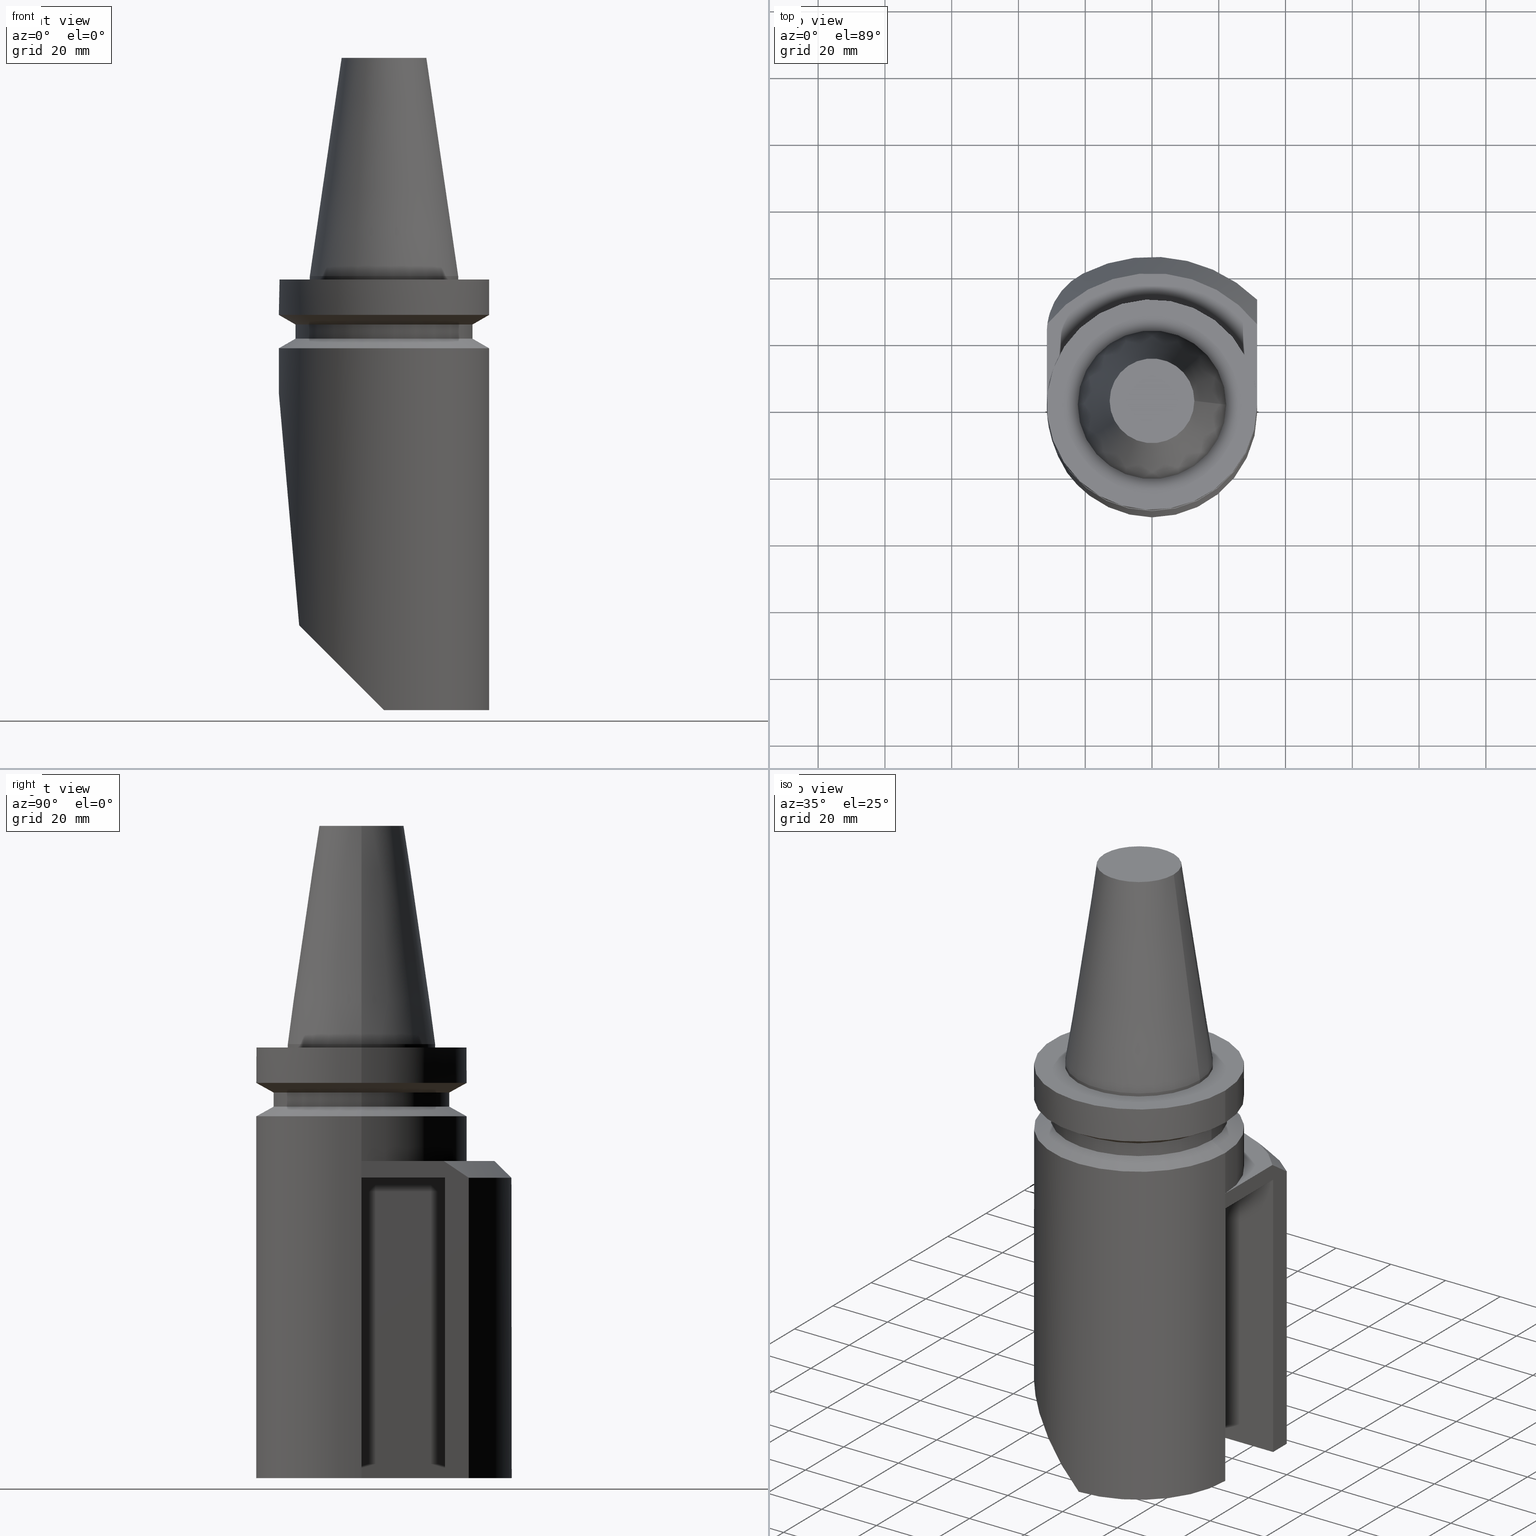
[diagram: canonical four-view strip — front | top / right | iso, engineering-drawing reading convention]
A machine part, canonical four-view strip (front | top / right | iso — engineering-drawing reading convention). The complete STEP part file that produces these views, byte-faithful:
ISO-10303-21;
HEADER;
FILE_DESCRIPTION((''),'1');
FILE_NAME('T:/21_DXF\X2\30C730FC30BF4F5C621057FA6E96\X0\/BBT40M-180-BH25R-130.stp','2017-05-02T05:33:56',(''),(''),'Spatial Interop R21 SP3','Kubotek KeyCreator 2011 V10.0.2 (22737)',' ');
FILE_SCHEMA(('automotive_design'));
ENDSEC;
DATA;
#1=MECHANICAL_DESIGN_GEOMETRIC_PRESENTATION_REPRESENTATION(' ',(#10,#11,#12,#13,#14,#15,#16,#17,#18,#19,#20,#21,#22,#23,#24,#25,#26,#27,#28,#29,#30,#31,#32,#33,#34,#35,#36,#37,#38,#39,#40,#41,#42,#43,#44,#45,#46,#47,#48,#49,#50,#51,#52,#53,#54,#55,#56,#57,#58,#59,#60,#61,#62,#63,#64,#65,#66,#67,#68,#69,#70,#71),#6);
#2=PRODUCT_DEFINITION_CONTEXT('',#72,'design');
#3=APPLICATION_PROTOCOL_DEFINITION('INTERNATIONAL STANDARD','automotive_design',1994,#72);
#4=PRODUCT_CATEGORY_RELATIONSHIP('NONE','NONE',#73,#74);
#5=SHAPE_DEFINITION_REPRESENTATION(#75,#76);
#6= (GEOMETRIC_REPRESENTATION_CONTEXT(3)GLOBAL_UNCERTAINTY_ASSIGNED_CONTEXT((#79))GLOBAL_UNIT_ASSIGNED_CONTEXT((#81,#82,#83))REPRESENTATION_CONTEXT('NONE','WORKSPACE'));
#10=STYLED_ITEM('',(#85),#86);
#11=STYLED_ITEM('',(#87,#88),#89);
#12=STYLED_ITEM('',(#90),#91);
#13=STYLED_ITEM('',(#92),#93);
#14=STYLED_ITEM('',(#94),#95);
#15=STYLED_ITEM('',(#96),#97);
#16=STYLED_ITEM('',(#98),#99);
#17=STYLED_ITEM('',(#100),#101);
#18=STYLED_ITEM('',(#102),#103);
#19=STYLED_ITEM('',(#104),#105);
#20=STYLED_ITEM('',(#106,#107),#108);
#21=STYLED_ITEM('',(#109,#110),#111);
#22=STYLED_ITEM('',(#112),#113);
#23=STYLED_ITEM('',(#114),#115);
#24=STYLED_ITEM('',(#116),#117);
#25=STYLED_ITEM('',(#118,#119),#120);
#26=STYLED_ITEM('',(#121),#122);
#27=STYLED_ITEM('',(#123),#124);
#28=STYLED_ITEM('',(#125,#126),#127);
#29=STYLED_ITEM('',(#128),#129);
#30=STYLED_ITEM('',(#130),#131);
#31=STYLED_ITEM('',(#132),#133);
#32=STYLED_ITEM('',(#134),#135);
#33=STYLED_ITEM('',(#136),#137);
#34=STYLED_ITEM('',(#138),#139);
#35=STYLED_ITEM('',(#140,#141),#142);
#36=STYLED_ITEM('',(#143),#144);
#37=STYLED_ITEM('',(#145,#146),#147);
#38=STYLED_ITEM('',(#148,#149),#150);
#39=STYLED_ITEM('',(#151,#152),#153);
#40=STYLED_ITEM('',(#154),#155);
#41=STYLED_ITEM('',(#156),#157);
#42=STYLED_ITEM('',(#158,#159),#160);
#43=STYLED_ITEM('',(#161,#162),#163);
#44=STYLED_ITEM('',(#164),#165);
#45=STYLED_ITEM('',(#166),#167);
#46=STYLED_ITEM('',(#168,#169),#170);
#47=STYLED_ITEM('',(#171,#172),#173);
#48=STYLED_ITEM('',(#174,#175),#176);
#49=STYLED_ITEM('',(#177),#178);
#50=STYLED_ITEM('',(#179),#180);
#51=STYLED_ITEM('',(#181),#182);
#52=STYLED_ITEM('',(#183),#184);
#53=STYLED_ITEM('',(#185),#186);
#54=STYLED_ITEM('',(#187,#188),#189);
#55=STYLED_ITEM('',(#190),#191);
#56=STYLED_ITEM('',(#192),#193);
#57=STYLED_ITEM('',(#194,#195),#196);
#58=STYLED_ITEM('',(#197),#198);
#59=STYLED_ITEM('',(#199,#200),#201);
#60=STYLED_ITEM('',(#202),#203);
#61=STYLED_ITEM('',(#204,#205),#206);
#62=STYLED_ITEM('',(#207,#208),#209);
#63=STYLED_ITEM('',(#210,#211),#212);
#64=STYLED_ITEM('',(#213),#214);
#65=STYLED_ITEM('',(#215,#216),#217);
#66=STYLED_ITEM('',(#218),#219);
#67=STYLED_ITEM('',(#220),#221);
#68=STYLED_ITEM('',(#222),#223);
#69=STYLED_ITEM('',(#224),#225);
#70=STYLED_ITEM('',(#226,#227),#228);
#71=STYLED_ITEM('',(#229),#230);
#72=APPLICATION_CONTEXT(' ');
#73=PRODUCT_CATEGORY('part','NONE');
#74=PRODUCT_RELATED_PRODUCT_CATEGORY('detail',' ',(#231));
#75=PRODUCT_DEFINITION_SHAPE('NONE','NONE',#232);
#76=ADVANCED_BREP_SHAPE_REPRESENTATION('240[2]',(#163,#233),#6);
#79=UNCERTAINTY_MEASURE_WITH_UNIT(LENGTH_MEASURE(1.0E-006),#81,'','');
#81= (CONVERSION_BASED_UNIT('MILLIMETRE',#236)LENGTH_UNIT()NAMED_UNIT(#239));
#82= (NAMED_UNIT(#241)PLANE_ANGLE_UNIT()SI_UNIT($,.RADIAN.));
#83= (NAMED_UNIT(#241)SOLID_ANGLE_UNIT()SI_UNIT($,.STERADIAN.));
#85=PRESENTATION_STYLE_ASSIGNMENT((#247));
#86=EDGE_CURVE('240[2]',#248,#249,#250,.T.);
#87=PRESENTATION_STYLE_ASSIGNMENT((#251));
#88=PRESENTATION_STYLE_ASSIGNMENT((#252));
#89=ADVANCED_FACE('240[2]',(#253),#254,.T.);
#90=PRESENTATION_STYLE_ASSIGNMENT((#255));
#91=EDGE_CURVE('240[2]',#256,#257,#258,.T.);
#92=PRESENTATION_STYLE_ASSIGNMENT((#259));
#93=EDGE_CURVE('240[2]',#260,#261,#262,.T.);
#94=PRESENTATION_STYLE_ASSIGNMENT((#263));
#95=EDGE_CURVE('240[2]',#264,#265,#266,.T.);
#96=PRESENTATION_STYLE_ASSIGNMENT((#267));
#97=EDGE_CURVE('240[2]',#268,#269,#270,.T.);
#98=PRESENTATION_STYLE_ASSIGNMENT((#271));
#99=EDGE_CURVE('240[2]',#272,#273,#274,.T.);
#100=PRESENTATION_STYLE_ASSIGNMENT((#275));
#101=EDGE_CURVE('240[2]',#276,#248,#277,.T.);
#102=PRESENTATION_STYLE_ASSIGNMENT((#278));
#103=EDGE_CURVE('240[2]',#279,#265,#280,.T.);
#104=PRESENTATION_STYLE_ASSIGNMENT((#281));
#105=EDGE_CURVE('240[2]',#282,#282,#283,.T.);
#106=PRESENTATION_STYLE_ASSIGNMENT((#284));
#107=PRESENTATION_STYLE_ASSIGNMENT((#285));
#108=ADVANCED_FACE('240[2]',(#286),#287,.T.);
#109=PRESENTATION_STYLE_ASSIGNMENT((#288));
#110=PRESENTATION_STYLE_ASSIGNMENT((#289));
#111=ADVANCED_FACE('240[2]',(#290),#291,.F.);
#112=PRESENTATION_STYLE_ASSIGNMENT((#292));
#113=EDGE_CURVE('240[2]',#293,#294,#295,.F.);
#114=PRESENTATION_STYLE_ASSIGNMENT((#296));
#115=EDGE_CURVE('240[2]',#297,#298,#299,.T.);
#116=PRESENTATION_STYLE_ASSIGNMENT((#300));
#117=EDGE_CURVE('240[2]',#256,#272,#301,.T.);
#118=PRESENTATION_STYLE_ASSIGNMENT((#302));
#119=PRESENTATION_STYLE_ASSIGNMENT((#303));
#120=ADVANCED_FACE('240[2]',(#304,#305),#306,.T.);
#121=PRESENTATION_STYLE_ASSIGNMENT((#307));
#122=EDGE_CURVE('240[2]',#308,#308,#309,.T.);
#123=PRESENTATION_STYLE_ASSIGNMENT((#310));
#124=EDGE_CURVE('240[2]',#269,#264,#311,.T.);
#125=PRESENTATION_STYLE_ASSIGNMENT((#312));
#126=PRESENTATION_STYLE_ASSIGNMENT((#313));
#127=ADVANCED_FACE('240[2]',(#314),#315,.F.);
#128=PRESENTATION_STYLE_ASSIGNMENT((#316));
#129=EDGE_CURVE('240[2]',#317,#294,#318,.F.);
#130=PRESENTATION_STYLE_ASSIGNMENT((#319));
#131=EDGE_CURVE('240[2]',#293,#276,#320,.T.);
#132=PRESENTATION_STYLE_ASSIGNMENT((#321));
#133=EDGE_CURVE('240[2]',#257,#322,#323,.T.);
#134=PRESENTATION_STYLE_ASSIGNMENT((#324));
#135=EDGE_CURVE('240[2]',#325,#325,#326,.T.);
#136=PRESENTATION_STYLE_ASSIGNMENT((#327));
#137=EDGE_CURVE('240[2]',#261,#268,#328,.T.);
#138=PRESENTATION_STYLE_ASSIGNMENT((#329));
#139=EDGE_CURVE('240[2]',#294,#298,#330,.F.);
#140=PRESENTATION_STYLE_ASSIGNMENT((#331));
#141=PRESENTATION_STYLE_ASSIGNMENT((#332));
#142=ADVANCED_FACE('240[2]',(#333),#334,.T.);
#143=PRESENTATION_STYLE_ASSIGNMENT((#335));
#144=EDGE_CURVE('240[2]',#273,#257,#336,.T.);
#145=PRESENTATION_STYLE_ASSIGNMENT((#337));
#146=PRESENTATION_STYLE_ASSIGNMENT((#338));
#147=ADVANCED_FACE('240[2]',(#339,#340),#341,.T.);
#148=PRESENTATION_STYLE_ASSIGNMENT((#342));
#149=PRESENTATION_STYLE_ASSIGNMENT((#343));
#150=ADVANCED_FACE('240[2]',(#344,#345),#346,.T.);
#151=PRESENTATION_STYLE_ASSIGNMENT((#347));
#152=PRESENTATION_STYLE_ASSIGNMENT((#348));
#153=ADVANCED_FACE('240[2]',(#349),#350,.F.);
#154=PRESENTATION_STYLE_ASSIGNMENT((#351));
#155=EDGE_CURVE('240[2]',#279,#352,#353,.T.);
#156=PRESENTATION_STYLE_ASSIGNMENT((#354));
#157=EDGE_CURVE('240[2]',#265,#260,#355,.T.);
#158=PRESENTATION_STYLE_ASSIGNMENT((#356));
#159=PRESENTATION_STYLE_ASSIGNMENT((#357));
#160=ADVANCED_FACE('240[2]',(#358,#359),#360,.T.);
#161=PRESENTATION_STYLE_ASSIGNMENT((#361));
#162=PRESENTATION_STYLE_ASSIGNMENT((#362));
#163=MANIFOLD_SOLID_BREP('240[2]',#363);
#164=PRESENTATION_STYLE_ASSIGNMENT((#364));
#165=EDGE_CURVE('240[2]',#276,#352,#365,.F.);
#166=PRESENTATION_STYLE_ASSIGNMENT((#366));
#167=EDGE_CURVE('240[2]',#269,#293,#367,.T.);
#168=PRESENTATION_STYLE_ASSIGNMENT((#368));
#169=PRESENTATION_STYLE_ASSIGNMENT((#369));
#170=ADVANCED_FACE('240[2]',(#370,#371),#372,.T.);
#171=PRESENTATION_STYLE_ASSIGNMENT((#373));
#172=PRESENTATION_STYLE_ASSIGNMENT((#374));
#173=ADVANCED_FACE('240[2]',(#375),#376,.F.);
#174=PRESENTATION_STYLE_ASSIGNMENT((#377));
#175=PRESENTATION_STYLE_ASSIGNMENT((#378));
#176=ADVANCED_FACE('240[2]',(#379,#380),#381,.T.);
#177=PRESENTATION_STYLE_ASSIGNMENT((#382));
#178=EDGE_CURVE('240[2]',#317,#256,#383,.T.);
#179=PRESENTATION_STYLE_ASSIGNMENT((#384));
#180=EDGE_CURVE('240[2]',#272,#268,#385,.T.);
#181=PRESENTATION_STYLE_ASSIGNMENT((#386));
#182=EDGE_CURVE('240[2]',#248,#298,#387,.T.);
#183=PRESENTATION_STYLE_ASSIGNMENT((#388));
#184=EDGE_CURVE('240[2]',#322,#317,#389,.T.);
#185=PRESENTATION_STYLE_ASSIGNMENT((#390));
#186=EDGE_CURVE('240[2]',#391,#391,#392,.T.);
#187=PRESENTATION_STYLE_ASSIGNMENT((#393));
#188=PRESENTATION_STYLE_ASSIGNMENT((#394));
#189=ADVANCED_FACE('240[2]',(#395),#396,.F.);
#190=PRESENTATION_STYLE_ASSIGNMENT((#397));
#191=EDGE_CURVE('240[2]',#398,#398,#399,.T.);
#192=PRESENTATION_STYLE_ASSIGNMENT((#400));
#193=EDGE_CURVE('240[2]',#401,#401,#402,.T.);
#194=PRESENTATION_STYLE_ASSIGNMENT((#403));
#195=PRESENTATION_STYLE_ASSIGNMENT((#404));
#196=ADVANCED_FACE('240[2]',(#405),#406,.T.);
#197=PRESENTATION_STYLE_ASSIGNMENT((#407));
#198=EDGE_CURVE('240[2]',#408,#408,#409,.T.);
#199=PRESENTATION_STYLE_ASSIGNMENT((#410));
#200=PRESENTATION_STYLE_ASSIGNMENT((#411));
#201=ADVANCED_FACE('240[2]',(#412,#413),#414,.T.);
#202=PRESENTATION_STYLE_ASSIGNMENT((#415));
#203=EDGE_CURVE('240[2]',#352,#264,#416,.F.);
#204=PRESENTATION_STYLE_ASSIGNMENT((#417));
#205=PRESENTATION_STYLE_ASSIGNMENT((#418));
#206=ADVANCED_FACE('240[2]',(#419),#420,.F.);
#207=PRESENTATION_STYLE_ASSIGNMENT((#421));
#208=PRESENTATION_STYLE_ASSIGNMENT((#422));
#209=ADVANCED_FACE('240[2]',(#423),#424,.T.);
#210=PRESENTATION_STYLE_ASSIGNMENT((#425));
#211=PRESENTATION_STYLE_ASSIGNMENT((#426));
#212=ADVANCED_FACE('240[2]',(#427,#428),#429,.T.);
#213=PRESENTATION_STYLE_ASSIGNMENT((#430));
#214=EDGE_CURVE('240[2]',#249,#297,#431,.T.);
#215=PRESENTATION_STYLE_ASSIGNMENT((#432));
#216=PRESENTATION_STYLE_ASSIGNMENT((#433));
#217=ADVANCED_FACE('240[2]',(#434),#435,.T.);
#218=PRESENTATION_STYLE_ASSIGNMENT((#436));
#219=EDGE_CURVE('240[2]',#260,#297,#437,.T.);
#220=PRESENTATION_STYLE_ASSIGNMENT((#438));
#221=EDGE_CURVE('240[2]',#261,#273,#439,.T.);
#222=PRESENTATION_STYLE_ASSIGNMENT((#440));
#223=EDGE_CURVE('240[2]',#261,#322,#441,.T.);
#224=PRESENTATION_STYLE_ASSIGNMENT((#442));
#225=EDGE_CURVE('240[2]',#249,#279,#443,.T.);
#226=PRESENTATION_STYLE_ASSIGNMENT((#444));
#227=PRESENTATION_STYLE_ASSIGNMENT((#445));
#228=ADVANCED_FACE('240[2]',(#446),#447,.T.);
#229=PRESENTATION_STYLE_ASSIGNMENT((#448));
#230=EDGE_CURVE('240[2]',#449,#449,#450,.T.);
#231=PRODUCT('240[2]','240[2]','PART-240[2]-DESC',(#451));
#232=PRODUCT_DEFINITION('NONE','NONE',#452,#2);
#233=AXIS2_PLACEMENT_3D('',#453,#454,#455);
#236=LENGTH_MEASURE_WITH_UNIT(LENGTH_MEASURE(1.0),#456);
#239=DIMENSIONAL_EXPONENTS(1.0,0.0,0.0,0.0,0.0,0.0,0.0);
#241=DIMENSIONAL_EXPONENTS(0.0,0.0,0.0,0.0,0.0,0.0,0.0);
#247=CURVE_STYLE('',#457,POSITIVE_LENGTH_MEASURE(1000.0),#458);
#248=VERTEX_POINT('',#459);
#249=VERTEX_POINT('',#460);
#250=B_SPLINE_CURVE_WITH_KNOTS('',3,(#461,#462,#463,#464,#465,#466,#467,#468,#469,#470,#471,#472),.UNSPECIFIED.,.F.,.F.,(4,2,2,2,2,4),(3.6448240647727,4.06943192137555,4.49403977797839,4.91864763458123,5.34325549118408,5.58489350391862),.UNSPECIFIED.);
#251=SURFACE_STYLE_USAGE(.BOTH.,#473);
#252=CURVE_STYLE('',#474,POSITIVE_LENGTH_MEASURE(1000.0),#475);
#253=FACE_OUTER_BOUND('',#476,.T.);
#254=CONICAL_SURFACE('',#477,42.5,0.785398163397448);
#255=CURVE_STYLE('',#478,POSITIVE_LENGTH_MEASURE(1000.0),#479);
#256=VERTEX_POINT('',#480);
#257=VERTEX_POINT('',#481);
#258=LINE('',#482,#483);
#259=CURVE_STYLE('',#484,POSITIVE_LENGTH_MEASURE(1000.0),#485);
#260=VERTEX_POINT('',#486);
#261=VERTEX_POINT('',#487);
#262=LINE('',#488,#489);
#263=CURVE_STYLE('',#490,POSITIVE_LENGTH_MEASURE(1000.0),#491);
#264=VERTEX_POINT('',#492);
#265=VERTEX_POINT('',#493);
#266=ELLIPSE('',#494,361.421967366517,31.5);
#267=CURVE_STYLE('',#495,POSITIVE_LENGTH_MEASURE(1000.0),#496);
#268=VERTEX_POINT('',#497);
#269=VERTEX_POINT('',#498);
#270=CIRCLE('',#499,31.5);
#271=CURVE_STYLE('',#500,POSITIVE_LENGTH_MEASURE(1000.0),#501);
#272=VERTEX_POINT('',#502);
#273=VERTEX_POINT('',#503);
#274=LINE('',#504,#505);
#275=CURVE_STYLE('',#506,POSITIVE_LENGTH_MEASURE(1000.0),#507);
#276=VERTEX_POINT('',#508);
#277=LINE('',#509,#510);
#278=CURVE_STYLE('',#511,POSITIVE_LENGTH_MEASURE(1000.0),#512);
#279=VERTEX_POINT('',#513);
#280=LINE('',#514,#515);
#281=CURVE_STYLE('',#516,POSITIVE_LENGTH_MEASURE(1000.0),#517);
#282=VERTEX_POINT('',#518);
#283=CIRCLE('',#519,31.5);
#284=SURFACE_STYLE_USAGE(.BOTH.,#520);
#285=CURVE_STYLE('',#521,POSITIVE_LENGTH_MEASURE(1000.0),#522);
#286=FACE_OUTER_BOUND('',#523,.T.);
#287=PLANE('',#524);
#288=SURFACE_STYLE_USAGE(.BOTH.,#525);
#289=CURVE_STYLE('',#526,POSITIVE_LENGTH_MEASURE(1000.0),#527);
#290=FACE_OUTER_BOUND('',#528,.T.);
#291=PLANE('',#529);
#292=CURVE_STYLE('',#530,POSITIVE_LENGTH_MEASURE(1000.0),#531);
#293=VERTEX_POINT('',#532);
#294=VERTEX_POINT('',#533);
#295=CIRCLE('',#534,45.0);
#296=CURVE_STYLE('',#535,POSITIVE_LENGTH_MEASURE(1000.0),#536);
#297=VERTEX_POINT('',#537);
#298=VERTEX_POINT('',#538);
#299=B_SPLINE_CURVE_WITH_KNOTS('',3,(#539,#540,#541,#542,#543,#544,#545),.UNSPECIFIED.,.F.,.F.,(4,3,4),(0.0,0.369362908378819,0.917538816278321),.UNSPECIFIED.);
#300=CURVE_STYLE('',#546,POSITIVE_LENGTH_MEASURE(1000.0),#547);
#301=LINE('',#548,#549);
#302=SURFACE_STYLE_USAGE(.BOTH.,#550);
#303=CURVE_STYLE('',#551,POSITIVE_LENGTH_MEASURE(1000.0),#552);
#304=FACE_BOUND('',#553,.T.);
#305=FACE_BOUND('',#554,.T.);
#306=CYLINDRICAL_SURFACE('',#555,31.5);
#307=CURVE_STYLE('',#556,POSITIVE_LENGTH_MEASURE(1000.0),#557);
#308=VERTEX_POINT('',#558);
#309=CIRCLE('',#559,31.5);
#310=CURVE_STYLE('',#560,POSITIVE_LENGTH_MEASURE(1000.0),#561);
#311=ELLIPSE('',#562,44.5477272147525,31.5);
#312=SURFACE_STYLE_USAGE(.BOTH.,#563);
#313=CURVE_STYLE('',#564,POSITIVE_LENGTH_MEASURE(1000.0),#565);
#314=FACE_OUTER_BOUND('',#566,.T.);
#315=PLANE('',#567);
#316=CURVE_STYLE('',#568,POSITIVE_LENGTH_MEASURE(1000.0),#569);
#317=VERTEX_POINT('',#570);
#318=LINE('',#571,#572);
#319=CURVE_STYLE('',#573,POSITIVE_LENGTH_MEASURE(1000.0),#574);
#320=ELLIPSE('',#575,63.6396103067893,45.0);
#321=CURVE_STYLE('',#576,POSITIVE_LENGTH_MEASURE(1000.0),#577);
#322=VERTEX_POINT('',#578);
#323=LINE('',#579,#580);
#324=CURVE_STYLE('',#581,POSITIVE_LENGTH_MEASURE(1000.0),#582);
#325=VERTEX_POINT('',#583);
#326=CIRCLE('',#584,22.225);
#327=CURVE_STYLE('',#585,POSITIVE_LENGTH_MEASURE(1000.0),#586);
#328=LINE('',#587,#588);
#329=CURVE_STYLE('',#589,POSITIVE_LENGTH_MEASURE(1000.0),#590);
#330=LINE('',#591,#592);
#331=SURFACE_STYLE_USAGE(.BOTH.,#593);
#332=CURVE_STYLE('',#594,POSITIVE_LENGTH_MEASURE(1000.0),#595);
#333=FACE_OUTER_BOUND('',#596,.T.);
#334=CYLINDRICAL_SURFACE('',#597,45.0);
#335=CURVE_STYLE('',#598,POSITIVE_LENGTH_MEASURE(1000.0),#599);
#336=LINE('',#600,#601);
#337=SURFACE_STYLE_USAGE(.BOTH.,#602);
#338=CURVE_STYLE('',#603,POSITIVE_LENGTH_MEASURE(1000.0),#604);
#339=FACE_BOUND('',#605,.T.);
#340=FACE_BOUND('',#606,.T.);
#341=CYLINDRICAL_SURFACE('',#607,31.5);
#342=SURFACE_STYLE_USAGE(.BOTH.,#608);
#343=CURVE_STYLE('',#609,POSITIVE_LENGTH_MEASURE(1000.0),#610);
#344=FACE_BOUND('',#611,.T.);
#345=FACE_BOUND('',#612,.T.);
#346=CYLINDRICAL_SURFACE('',#613,26.5);
#347=SURFACE_STYLE_USAGE(.BOTH.,#614);
#348=CURVE_STYLE('',#615,POSITIVE_LENGTH_MEASURE(1000.0),#616);
#349=FACE_OUTER_BOUND('',#617,.T.);
#350=PLANE('',#618);
#351=CURVE_STYLE('',#619,POSITIVE_LENGTH_MEASURE(1000.0),#620);
#352=VERTEX_POINT('',#621);
#353=ELLIPSE('',#622,229.474264994614,20.0);
#354=CURVE_STYLE('',#623,POSITIVE_LENGTH_MEASURE(1000.0),#624);
#355=CIRCLE('',#625,31.5);
#356=SURFACE_STYLE_USAGE(.BOTH.,#626);
#357=CURVE_STYLE('',#627,POSITIVE_LENGTH_MEASURE(1000.0),#628);
#358=FACE_BOUND('',#629,.T.);
#359=FACE_BOUND('',#630,.T.);
#360=CYLINDRICAL_SURFACE('',#631,22.225);
#361=SURFACE_STYLE_USAGE(.BOTH.,#632);
#362=CURVE_STYLE('',#633,POSITIVE_LENGTH_MEASURE(1000.0),#634);
#363=CLOSED_SHELL('',(#173,#206,#127,#108,#189,#217,#209,#142,#147,#153,#111,#89,#228,#196,#176,#160,#170,#212,#150,#201,#120));
#364=CURVE_STYLE('',#635,POSITIVE_LENGTH_MEASURE(1000.0),#636);
#365=ELLIPSE('',#637,28.2842712474619,20.0);
#366=CURVE_STYLE('',#638,POSITIVE_LENGTH_MEASURE(1000.0),#639);
#367=LINE('',#640,#641);
#368=SURFACE_STYLE_USAGE(.BOTH.,#642);
#369=CURVE_STYLE('',#643,POSITIVE_LENGTH_MEASURE(1000.0),#644);
#370=FACE_OUTER_BOUND('',#645,.T.);
#371=FACE_BOUND('',#646,.T.);
#372=PLANE('',#647);
#373=SURFACE_STYLE_USAGE(.BOTH.,#648);
#374=CURVE_STYLE('',#649,POSITIVE_LENGTH_MEASURE(1000.0),#650);
#375=FACE_OUTER_BOUND('',#651,.T.);
#376=PLANE('',#652);
#377=SURFACE_STYLE_USAGE(.BOTH.,#653);
#378=CURVE_STYLE('',#654,POSITIVE_LENGTH_MEASURE(1000.0),#655);
#379=FACE_BOUND('',#656,.T.);
#380=FACE_BOUND('',#657,.T.);
#381=CONICAL_SURFACE('',#658,17.4562500022463,0.144812498171676);
#382=CURVE_STYLE('',#659,POSITIVE_LENGTH_MEASURE(1000.0),#660);
#383=LINE('',#661,#662);
#384=CURVE_STYLE('',#663,POSITIVE_LENGTH_MEASURE(1000.0),#664);
#385=LINE('',#665,#666);
#386=CURVE_STYLE('',#667,POSITIVE_LENGTH_MEASURE(1000.0),#668);
#387=CIRCLE('',#669,45.0);
#388=CURVE_STYLE('',#670,POSITIVE_LENGTH_MEASURE(1000.0),#671);
#389=LINE('',#672,#673);
#390=CURVE_STYLE('',#674,POSITIVE_LENGTH_MEASURE(1000.0),#675);
#391=VERTEX_POINT('',#676);
#392=CIRCLE('',#677,12.6875000044926);
#393=SURFACE_STYLE_USAGE(.BOTH.,#678);
#394=CURVE_STYLE('',#679,POSITIVE_LENGTH_MEASURE(1000.0),#680);
#395=FACE_OUTER_BOUND('',#681,.T.);
#396=PLANE('',#682);
#397=CURVE_STYLE('',#683,POSITIVE_LENGTH_MEASURE(1000.0),#684);
#398=VERTEX_POINT('',#685);
#399=CIRCLE('',#686,22.225);
#400=CURVE_STYLE('',#687,POSITIVE_LENGTH_MEASURE(1000.0),#688);
#401=VERTEX_POINT('',#689);
#402=CIRCLE('',#690,26.5);
#403=SURFACE_STYLE_USAGE(.BOTH.,#691);
#404=CURVE_STYLE('',#692,POSITIVE_LENGTH_MEASURE(1000.0),#693);
#405=FACE_OUTER_BOUND('',#694,.T.);
#406=PLANE('',#695);
#407=CURVE_STYLE('',#696,POSITIVE_LENGTH_MEASURE(1000.0),#697);
#408=VERTEX_POINT('',#698);
#409=CIRCLE('',#699,26.5);
#410=SURFACE_STYLE_USAGE(.BOTH.,#700);
#411=CURVE_STYLE('',#701,POSITIVE_LENGTH_MEASURE(1000.0),#702);
#412=FACE_BOUND('',#703,.T.);
#413=FACE_BOUND('',#704,.T.);
#414=CONICAL_SURFACE('',#705,29.0,1.04719755058882);
#415=CURVE_STYLE('',#706,POSITIVE_LENGTH_MEASURE(1000.0),#707);
#416=LINE('',#708,#709);
#417=SURFACE_STYLE_USAGE(.BOTH.,#710);
#418=CURVE_STYLE('',#711,POSITIVE_LENGTH_MEASURE(1000.0),#712);
#419=FACE_OUTER_BOUND('',#713,.T.);
#420=PLANE('',#714);
#421=SURFACE_STYLE_USAGE(.BOTH.,#715);
#422=CURVE_STYLE('',#716,POSITIVE_LENGTH_MEASURE(1000.0),#717);
#423=FACE_OUTER_BOUND('',#718,.T.);
#424=PLANE('',#719);
#425=SURFACE_STYLE_USAGE(.BOTH.,#720);
#426=CURVE_STYLE('',#721,POSITIVE_LENGTH_MEASURE(1000.0),#722);
#427=FACE_BOUND('',#723,.T.);
#428=FACE_BOUND('',#724,.T.);
#429=CONICAL_SURFACE('',#725,29.0,1.04719755058882);
#430=CURVE_STYLE('',#726,POSITIVE_LENGTH_MEASURE(1000.0),#727);
#431=CIRCLE('',#728,40.0);
#432=SURFACE_STYLE_USAGE(.BOTH.,#729);
#433=CURVE_STYLE('',#730,POSITIVE_LENGTH_MEASURE(1000.0),#731);
#434=FACE_OUTER_BOUND('',#732,.T.);
#435=CYLINDRICAL_SURFACE('',#733,20.0);
#436=CURVE_STYLE('',#734,POSITIVE_LENGTH_MEASURE(1000.0),#735);
#437=LINE('',#736,#737);
#438=CURVE_STYLE('',#738,POSITIVE_LENGTH_MEASURE(1000.0),#739);
#439=LINE('',#740,#741);
#440=CURVE_STYLE('',#742,POSITIVE_LENGTH_MEASURE(1000.0),#743);
#441=LINE('',#744,#745);
#442=CURVE_STYLE('',#746,POSITIVE_LENGTH_MEASURE(1000.0),#747);
#443=CIRCLE('',#748,20.0);
#444=SURFACE_STYLE_USAGE(.BOTH.,#749);
#445=CURVE_STYLE('',#750,POSITIVE_LENGTH_MEASURE(1000.0),#751);
#446=FACE_OUTER_BOUND('',#752,.T.);
#447=PLANE('',#753);
#448=CURVE_STYLE('',#754,POSITIVE_LENGTH_MEASURE(1000.0),#755);
#449=VERTEX_POINT('',#756);
#450=CIRCLE('',#757,31.5);
#451=PRODUCT_CONTEXT('',#72,'mechanical');
#452=PRODUCT_DEFINITION_FORMATION_WITH_SPECIFIED_SOURCE(' ','NONE',#231,.NOT_KNOWN.);
#453=CARTESIAN_POINT('',(0.0,0.0,0.0));
#454=DIRECTION('',(0.0,0.0,1.0));
#455=DIRECTION('',(1.0,0.0,0.0));
#456= (NAMED_UNIT(#239)LENGTH_UNIT()SI_UNIT(.MILLI.,.METRE.));
#457=DRAUGHTING_PRE_DEFINED_CURVE_FONT('continuous');
#458=COLOUR_RGB('',0.0,1.0,1.0);
#459=CARTESIAN_POINT('',(-20.7000000003111,39.9563511842665,-39.9999999997035));
#460=CARTESIAN_POINT('',(-31.3190777410008,24.8820290461439,-35.0));
#461=CARTESIAN_POINT('',(-20.7000000003111,39.9563511842665,-39.9999999997035));
#462=CARTESIAN_POINT('',(-21.9567244917306,39.3052858041324,-39.9999999997083));
#463=CARTESIAN_POINT('',(-23.1716294908664,38.5038773242289,-39.915406152038));
#464=CARTESIAN_POINT('',(-25.4050109414492,36.6465065579947,-39.5679453349064));
#465=CARTESIAN_POINT('',(-26.4235938720837,35.59066700866,-39.3051067052726));
#466=CARTESIAN_POINT('',(-28.1899230558646,33.312125702104,-38.6166259583971));
#467=CARTESIAN_POINT('',(-28.9398045203835,32.0867683818523,-38.1900288645896));
#468=CARTESIAN_POINT('',(-30.1408535510776,29.577243661181,-37.2088852936142));
#469=CARTESIAN_POINT('',(-30.5920445768402,28.2931767156501,-36.6541106110761));
#470=CARTESIAN_POINT('',(-31.0815476164028,26.3331686854598,-35.7317252069591));
#471=CARTESIAN_POINT('',(-31.2204576910933,25.6102397522291,-35.3757667732663));
#472=CARTESIAN_POINT('',(-31.3190777410008,24.8820290461439,-35.0));
#473=SURFACE_SIDE_STYLE('',(#759));
#474=DRAUGHTING_PRE_DEFINED_CURVE_FONT('continuous');
#475=COLOUR_RGB('',0.0,1.0,1.0);
#476=EDGE_LOOP('',(#760,#761,#762,#763));
#477=AXIS2_PLACEMENT_3D('',#764,#765,#766);
#478=DRAUGHTING_PRE_DEFINED_CURVE_FONT('continuous');
#479=COLOUR_RGB('',0.0,1.0,1.0);
#480=CARTESIAN_POINT('',(6.5000056898272,25.0,-130.0));
#481=CARTESIAN_POINT('',(6.50000568982719,25.0,-40.0));
#482=CARTESIAN_POINT('',(6.5000056898272,25.0,-130.0));
#483=VECTOR('',#767,10.0);
#484=DRAUGHTING_PRE_DEFINED_CURVE_FONT('continuous');
#485=COLOUR_RGB('',0.0,1.0,1.0);
#486=CARTESIAN_POINT('',(31.5,-7.92958802447911E-015,-35.0));
#487=CARTESIAN_POINT('',(31.5000056898272,-8.23575076947025E-015,-40.0));
#488=CARTESIAN_POINT('',(31.4999999979768,-1.37466603200574E-014,-130.0));
#489=VECTOR('',#768,10.0);
#490=DRAUGHTING_PRE_DEFINED_CURVE_FONT('continuous');
#491=COLOUR_RGB('',0.0,1.0,1.0);
#492=CARTESIAN_POINT('',(-25.411823436935,-18.6142211658195,-104.588176569096));
#493=CARTESIAN_POINT('',(-31.5,3.64332422746338E-015,-35.0));
#494=AXIS2_PLACEMENT_3D('',#769,#770,#771);
#495=DRAUGHTING_PRE_DEFINED_CURVE_FONT('continuous');
#496=COLOUR_RGB('',0.0,1.0,1.0);
#497=CARTESIAN_POINT('',(31.4999999979768,-1.37466603200574E-014,-130.0));
#498=CARTESIAN_POINT('',(-6.03177642497103E-009,-31.5,-130.0));
#499=AXIS2_PLACEMENT_3D('',#772,#773,#774);
#500=DRAUGHTING_PRE_DEFINED_CURVE_FONT('continuous');
#501=COLOUR_RGB('',0.0,1.0,1.0);
#502=CARTESIAN_POINT('',(6.50000568982719,-9.15423586883077E-015,-130.0));
#503=CARTESIAN_POINT('',(6.50000568982718,-3.64332527266767E-015,-40.0));
#504=CARTESIAN_POINT('',(6.50000568982719,-9.15423586883077E-015,-130.0));
#505=VECTOR('',#775,10.0);
#506=DRAUGHTING_PRE_DEFINED_CURVE_FONT('continuous');
#507=COLOUR_RGB('',0.0,1.0,1.0);
#508=CARTESIAN_POINT('',(-20.7000000003111,39.9563511839994,-109.300000005721));
#509=CARTESIAN_POINT('',(-20.7000000003111,39.9563511839994,-130.0));
#510=VECTOR('',#776,10.0);
#511=DRAUGHTING_PRE_DEFINED_CURVE_FONT('continuous');
#512=COLOUR_RGB('',0.0,1.0,1.0);
#513=CARTESIAN_POINT('',(-31.5000000001728,22.1979728799997,-34.9999999980247));
#514=CARTESIAN_POINT('',(-31.5,3.64332422746338E-015,-35.0));
#515=VECTOR('',#777,10.0);
#516=DRAUGHTING_PRE_DEFINED_CURVE_FONT('continuous');
#517=COLOUR_RGB('',0.0,1.0,1.0);
#518=CARTESIAN_POINT('',(-31.5000000001728,5.07616098249752E-015,-11.6));
#519=AXIS2_PLACEMENT_3D('',#778,#779,#780);
#520=SURFACE_SIDE_STYLE('',(#781));
#521=DRAUGHTING_PRE_DEFINED_CURVE_FONT('continuous');
#522=COLOUR_RGB('',0.0,1.0,1.0);
#523=EDGE_LOOP('',(#782,#783,#784,#785));
#524=AXIS2_PLACEMENT_3D('',#786,#787,#788);
#525=SURFACE_SIDE_STYLE('',(#789));
#526=DRAUGHTING_PRE_DEFINED_CURVE_FONT('continuous');
#527=COLOUR_RGB('',0.0,1.0,1.0);
#528=EDGE_LOOP('',(#790,#791,#792,#793,#794));
#529=AXIS2_PLACEMENT_3D('',#795,#796,#797);
#530=DRAUGHTING_PRE_DEFINED_CURVE_FONT('continuous');
#531=COLOUR_RGB('',0.0,1.0,1.0);
#532=CARTESIAN_POINT('',(-6.03175349036481E-009,45.0,-130.0));
#533=CARTESIAN_POINT('',(31.4999999979768,32.136427930426,-130.0));
#534=AXIS2_PLACEMENT_3D('',#798,#799,#800);
#535=DRAUGHTING_PRE_DEFINED_CURVE_FONT('continuous');
#536=COLOUR_RGB('',0.0,1.0,1.0);
#537=CARTESIAN_POINT('',(31.4999999979768,24.6525860738272,-35.0));
#538=CARTESIAN_POINT('',(31.4999999979725,32.1364279304387,-40.0000000000122));
#539=CARTESIAN_POINT('',(31.4999999979768,24.6525860738272,-35.0));
#540=CARTESIAN_POINT('',(31.4999999979768,25.6197317923573,-35.5960660767999));
#541=CARTESIAN_POINT('',(31.4999999979768,26.606922859908,-36.2262107216744));
#542=CARTESIAN_POINT('',(31.4999999979768,27.6179245295397,-36.8927172094612));
#543=CARTESIAN_POINT('',(31.4999999979768,29.1183641935297,-37.8818874557838));
#544=CARTESIAN_POINT('',(31.4999999979725,30.6285284031306,-38.923144344775));
#545=CARTESIAN_POINT('',(31.4999999979725,32.1364279304387,-40.0000000000122));
#546=DRAUGHTING_PRE_DEFINED_CURVE_FONT('continuous');
#547=COLOUR_RGB('',0.0,1.0,1.0);
#548=CARTESIAN_POINT('',(6.50000568982719,-8.64042456488601E-015,-130.0));
#549=VECTOR('',#801,10.0);
#550=SURFACE_SIDE_STYLE('',(#802));
#551=DRAUGHTING_PRE_DEFINED_CURVE_FONT('continuous');
#552=COLOUR_RGB('',0.0,1.0,1.0);
#553=EDGE_LOOP('',(#803,#804,#805,#806,#807,#808));
#554=EDGE_LOOP('',(#809));
#555=AXIS2_PLACEMENT_3D('',#810,#811,#812);
#556=DRAUGHTING_PRE_DEFINED_CURVE_FONT('continuous');
#557=COLOUR_RGB('',0.0,1.0,1.0);
#558=CARTESIAN_POINT('',(31.5,-5.84768846592861E-015,-0.999999999999996));
#559=AXIS2_PLACEMENT_3D('',#813,#814,#815);
#560=DRAUGHTING_PRE_DEFINED_CURVE_FONT('continuous');
#561=COLOUR_RGB('',0.0,1.0,1.0);
#562=AXIS2_PLACEMENT_3D('',#816,#817,#818);
#563=SURFACE_SIDE_STYLE('',(#819));
#564=DRAUGHTING_PRE_DEFINED_CURVE_FONT('continuous');
#565=COLOUR_RGB('',0.0,1.0,1.0);
#566=EDGE_LOOP('',(#820,#821,#822,#823));
#567=AXIS2_PLACEMENT_3D('',#824,#825,#826);
#568=DRAUGHTING_PRE_DEFINED_CURVE_FONT('continuous');
#569=COLOUR_RGB('',0.0,1.0,1.0);
#570=CARTESIAN_POINT('',(31.4999999979768,25.0,-130.0));
#571=CARTESIAN_POINT('',(31.4999999979768,-1.37466603200574E-014,-130.0));
#572=VECTOR('',#827,1.0);
#573=DRAUGHTING_PRE_DEFINED_CURVE_FONT('continuous');
#574=COLOUR_RGB('',0.0,1.0,1.0);
#575=AXIS2_PLACEMENT_3D('',#828,#829,#830);
#576=DRAUGHTING_PRE_DEFINED_CURVE_FONT('continuous');
#577=COLOUR_RGB('',0.0,1.0,1.0);
#578=CARTESIAN_POINT('',(31.5000056898272,25.0,-40.0));
#579=CARTESIAN_POINT('',(6.50000568982719,25.0,-40.0));
#580=VECTOR('',#831,10.0);
#581=DRAUGHTING_PRE_DEFINED_CURVE_FONT('continuous');
#582=COLOUR_RGB('',0.0,1.0,1.0);
#583=CARTESIAN_POINT('',(22.225,-4.14389860661486E-015,-0.999999999999997));
#584=AXIS2_PLACEMENT_3D('',#832,#833,#834);
#585=DRAUGHTING_PRE_DEFINED_CURVE_FONT('continuous');
#586=COLOUR_RGB('',0.0,1.0,1.0);
#587=CARTESIAN_POINT('',(31.4999999979768,-1.37466603200574E-014,-130.0));
#588=VECTOR('',#835,10.0);
#589=DRAUGHTING_PRE_DEFINED_CURVE_FONT('continuous');
#590=COLOUR_RGB('',0.0,1.0,1.0);
#591=CARTESIAN_POINT('',(31.4999999979768,32.136427930426,-83.0));
#592=VECTOR('',#836,1.0);
#593=SURFACE_SIDE_STYLE('',(#837));
#594=DRAUGHTING_PRE_DEFINED_CURVE_FONT('continuous');
#595=COLOUR_RGB('',0.0,1.0,1.0);
#596=EDGE_LOOP('',(#838,#839,#840,#841,#842));
#597=AXIS2_PLACEMENT_3D('',#843,#844,#845);
#598=DRAUGHTING_PRE_DEFINED_CURVE_FONT('continuous');
#599=COLOUR_RGB('',0.0,1.0,1.0);
#600=CARTESIAN_POINT('',(6.50000568982718,-3.64332527266767E-015,-40.0));
#601=VECTOR('',#846,10.0);
#602=SURFACE_SIDE_STYLE('',(#847));
#603=DRAUGHTING_PRE_DEFINED_CURVE_FONT('continuous');
#604=COLOUR_RGB('',0.0,1.0,1.0);
#605=EDGE_LOOP('',(#848));
#606=EDGE_LOOP('',(#849));
#607=AXIS2_PLACEMENT_3D('',#850,#851,#852);
#608=SURFACE_SIDE_STYLE('',(#853));
#609=DRAUGHTING_PRE_DEFINED_CURVE_FONT('continuous');
#610=COLOUR_RGB('',0.0,1.0,1.0);
#611=EDGE_LOOP('',(#854));
#612=EDGE_LOOP('',(#855));
#613=AXIS2_PLACEMENT_3D('',#856,#857,#858);
#614=SURFACE_SIDE_STYLE('',(#859));
#615=DRAUGHTING_PRE_DEFINED_CURVE_FONT('continuous');
#616=COLOUR_RGB('',0.0,1.0,1.0);
#617=EDGE_LOOP('',(#860,#861,#862,#863));
#618=AXIS2_PLACEMENT_3D('',#864,#865,#866);
#619=DRAUGHTING_PRE_DEFINED_CURVE_FONT('continuous');
#620=COLOUR_RGB('',0.0,1.0,1.0);
#621=CARTESIAN_POINT('',(-25.4118234369349,36.5667295647082,-104.588176569097));
#622=AXIS2_PLACEMENT_3D('',#867,#868,#869);
#623=DRAUGHTING_PRE_DEFINED_CURVE_FONT('continuous');
#624=COLOUR_RGB('',0.0,1.0,1.0);
#625=AXIS2_PLACEMENT_3D('',#870,#871,#872);
#626=SURFACE_SIDE_STYLE('',(#873));
#627=DRAUGHTING_PRE_DEFINED_CURVE_FONT('continuous');
#628=COLOUR_RGB('',0.0,1.0,1.0);
#629=EDGE_LOOP('',(#874));
#630=EDGE_LOOP('',(#875));
#631=AXIS2_PLACEMENT_3D('',#876,#877,#878);
#632=SURFACE_SIDE_STYLE('',(#879));
#633=DRAUGHTING_PRE_DEFINED_CURVE_FONT('continuous');
#634=COLOUR_RGB('',0.0,1.0,1.0);
#635=DRAUGHTING_PRE_DEFINED_CURVE_FONT('continuous');
#636=COLOUR_RGB('',0.0,1.0,1.0);
#637=AXIS2_PLACEMENT_3D('',#880,#881,#882);
#638=DRAUGHTING_PRE_DEFINED_CURVE_FONT('continuous');
#639=COLOUR_RGB('',0.0,1.0,1.0);
#640=CARTESIAN_POINT('',(-6.0317617567307E-009,-7.96020419334976E-015,-130.0));
#641=VECTOR('',#883,1.0);
#642=SURFACE_SIDE_STYLE('',(#884));
#643=DRAUGHTING_PRE_DEFINED_CURVE_FONT('continuous');
#644=COLOUR_RGB('',0.0,1.0,1.0);
#645=EDGE_LOOP('',(#885));
#646=EDGE_LOOP('',(#886));
#647=AXIS2_PLACEMENT_3D('',#887,#888,#889);
#648=SURFACE_SIDE_STYLE('',(#890));
#649=DRAUGHTING_PRE_DEFINED_CURVE_FONT('continuous');
#650=COLOUR_RGB('',0.0,1.0,1.0);
#651=EDGE_LOOP('',(#891,#892,#893,#894));
#652=AXIS2_PLACEMENT_3D('',#895,#896,#897);
#653=SURFACE_SIDE_STYLE('',(#898));
#654=DRAUGHTING_PRE_DEFINED_CURVE_FONT('continuous');
#655=COLOUR_RGB('',0.0,1.0,1.0);
#656=EDGE_LOOP('',(#899));
#657=EDGE_LOOP('',(#900));
#658=AXIS2_PLACEMENT_3D('',#901,#902,#903);
#659=DRAUGHTING_PRE_DEFINED_CURVE_FONT('continuous');
#660=COLOUR_RGB('',0.0,1.0,1.0);
#661=CARTESIAN_POINT('',(13.5000028449136,25.0,-130.0));
#662=VECTOR('',#904,10.0);
#663=DRAUGHTING_PRE_DEFINED_CURVE_FONT('continuous');
#664=COLOUR_RGB('',0.0,1.0,1.0);
#665=CARTESIAN_POINT('',(26.0000028449136,-1.27363272337346E-014,-130.0));
#666=VECTOR('',#905,10.0);
#667=DRAUGHTING_PRE_DEFINED_CURVE_FONT('continuous');
#668=COLOUR_RGB('',0.0,1.0,1.0);
#669=AXIS2_PLACEMENT_3D('',#906,#907,#908);
#670=DRAUGHTING_PRE_DEFINED_CURVE_FONT('continuous');
#671=COLOUR_RGB('',0.0,1.0,1.0);
#672=CARTESIAN_POINT('',(31.4999999979768,25.0,-129.500000001154));
#673=VECTOR('',#909,10.0);
#674=DRAUGHTING_PRE_DEFINED_CURVE_FONT('continuous');
#675=COLOUR_RGB('',0.0,1.0,1.0);
#676=CARTESIAN_POINT('',(12.6875000044926,1.67393909275927E-015,65.4));
#677=AXIS2_PLACEMENT_3D('',#910,#911,#912);
#678=SURFACE_SIDE_STYLE('',(#913));
#679=DRAUGHTING_PRE_DEFINED_CURVE_FONT('continuous');
#680=COLOUR_RGB('',0.0,1.0,1.0);
#681=EDGE_LOOP('',(#914,#915,#916,#917,#918,#919,#920));
#682=AXIS2_PLACEMENT_3D('',#921,#922,#923);
#683=DRAUGHTING_PRE_DEFINED_CURVE_FONT('continuous');
#684=COLOUR_RGB('',0.0,1.0,1.0);
#685=CARTESIAN_POINT('',(22.225,-4.08266626665749E-015,2.72177751110499E-015));
#686=AXIS2_PLACEMENT_3D('',#924,#925,#926);
#687=DRAUGHTING_PRE_DEFINED_CURVE_FONT('continuous');
#688=COLOUR_RGB('',0.0,1.0,1.0);
#689=CARTESIAN_POINT('',(26.5,-6.01382702965428E-015,-18.71324865));
#690=AXIS2_PLACEMENT_3D('',#927,#928,#929);
#691=SURFACE_SIDE_STYLE('',(#930));
#692=DRAUGHTING_PRE_DEFINED_CURVE_FONT('continuous');
#693=COLOUR_RGB('',0.0,1.0,1.0);
#694=EDGE_LOOP('',(#931));
#695=AXIS2_PLACEMENT_3D('',#932,#933,#934);
#696=DRAUGHTING_PRE_DEFINED_CURVE_FONT('continuous');
#697=COLOUR_RGB('',0.0,1.0,1.0);
#698=CARTESIAN_POINT('',(26.5,-5.75502871015178E-015,-14.48675135));
#699=AXIS2_PLACEMENT_3D('',#935,#936,#937);
#700=SURFACE_SIDE_STYLE('',(#938));
#701=DRAUGHTING_PRE_DEFINED_CURVE_FONT('continuous');
#702=COLOUR_RGB('',0.0,1.0,1.0);
#703=EDGE_LOOP('',(#939));
#704=EDGE_LOOP('',(#940));
#705=AXIS2_PLACEMENT_3D('',#941,#942,#943);
#706=DRAUGHTING_PRE_DEFINED_CURVE_FONT('continuous');
#707=COLOUR_RGB('',0.0,1.0,1.0);
#708=CARTESIAN_POINT('',(-25.4118234369349,-1.7361025483191E-015,-104.588176569097));
#709=VECTOR('',#944,1.0);
#710=SURFACE_SIDE_STYLE('',(#945));
#711=DRAUGHTING_PRE_DEFINED_CURVE_FONT('continuous');
#712=COLOUR_RGB('',0.0,1.0,1.0);
#713=EDGE_LOOP('',(#946,#947,#948,#949));
#714=AXIS2_PLACEMENT_3D('',#950,#951,#952);
#715=SURFACE_SIDE_STYLE('',(#953));
#716=DRAUGHTING_PRE_DEFINED_CURVE_FONT('continuous');
#717=COLOUR_RGB('',0.0,1.0,1.0);
#718=EDGE_LOOP('',(#954,#955,#956,#957,#958));
#719=AXIS2_PLACEMENT_3D('',#959,#960,#961);
#720=SURFACE_SIDE_STYLE('',(#962));
#721=DRAUGHTING_PRE_DEFINED_CURVE_FONT('continuous');
#722=COLOUR_RGB('',0.0,1.0,1.0);
#723=EDGE_LOOP('',(#963));
#724=EDGE_LOOP('',(#964));
#725=AXIS2_PLACEMENT_3D('',#965,#966,#967);
#726=DRAUGHTING_PRE_DEFINED_CURVE_FONT('continuous');
#727=COLOUR_RGB('',0.0,1.0,1.0);
#728=AXIS2_PLACEMENT_3D('',#968,#969,#970);
#729=SURFACE_SIDE_STYLE('',(#971));
#730=DRAUGHTING_PRE_DEFINED_CURVE_FONT('continuous');
#731=COLOUR_RGB('',0.0,1.0,1.0);
#732=EDGE_LOOP('',(#972,#973,#974,#975,#976));
#733=AXIS2_PLACEMENT_3D('',#977,#978,#979);
#734=DRAUGHTING_PRE_DEFINED_CURVE_FONT('continuous');
#735=COLOUR_RGB('',0.0,1.0,1.0);
#736=CARTESIAN_POINT('',(31.4999999979768,-7.92958802410746E-015,-35.0));
#737=VECTOR('',#980,10.0);
#738=DRAUGHTING_PRE_DEFINED_CURVE_FONT('continuous');
#739=COLOUR_RGB('',0.0,1.0,1.0);
#740=CARTESIAN_POINT('',(31.5000056898272,-8.23575076947025E-015,-40.0));
#741=VECTOR('',#981,10.0);
#742=DRAUGHTING_PRE_DEFINED_CURVE_FONT('continuous');
#743=COLOUR_RGB('',0.0,1.0,1.0);
#744=CARTESIAN_POINT('',(31.4999999979768,6.24999999999999,-40.0));
#745=VECTOR('',#982,10.0);
#746=DRAUGHTING_PRE_DEFINED_CURVE_FONT('continuous');
#747=COLOUR_RGB('',0.0,1.0,1.0);
#748=AXIS2_PLACEMENT_3D('',#983,#984,#985);
#749=SURFACE_SIDE_STYLE('',(#986));
#750=DRAUGHTING_PRE_DEFINED_CURVE_FONT('continuous');
#751=COLOUR_RGB('',0.0,1.0,1.0);
#752=EDGE_LOOP('',(#987,#988,#989,#990,#991,#992,#993));
#753=AXIS2_PLACEMENT_3D('',#994,#995,#996);
#754=DRAUGHTING_PRE_DEFINED_CURVE_FONT('continuous');
#755=COLOUR_RGB('',0.0,1.0,1.0);
#756=CARTESIAN_POINT('',(-31.5000000001728,4.46383758291774E-015,-21.6000000000998));
#757=AXIS2_PLACEMENT_3D('',#997,#998,#999);
#759=SURFACE_STYLE_FILL_AREA(#1000);
#760=ORIENTED_EDGE('',*,*,#86,.T.);
#761=ORIENTED_EDGE('',*,*,#214,.T.);
#762=ORIENTED_EDGE('',*,*,#115,.T.);
#763=ORIENTED_EDGE('',*,*,#182,.F.);
#764=CARTESIAN_POINT('',(4.59242549680257E-015,-2.29621274840129E-015,-37.5));
#765=DIRECTION('',(1.22464679914735E-016,-6.12323399573677E-017,-1.0));
#766=DIRECTION('',(1.0,-1.83697019872103E-016,1.22464679914735E-016));
#767=DIRECTION('',(-1.22464679914735E-016,6.12323399573677E-017,1.0));
#768=DIRECTION('',(1.22464679914735E-016,-6.12323399573677E-017,-1.0));
#769=CARTESIAN_POINT('',(4.83792612577309E-014,-2.41896306288654E-014,-395.046647665387));
#770=DIRECTION('',(-0.996194698094444,1.77661247185066E-016,-0.0871557427168117));
#771=DIRECTION('',(0.0871557427168117,-7.70095826192643E-017,-0.996194698094444));
#772=CARTESIAN_POINT('',(1.59204083889156E-014,-7.9602041944578E-015,-130.0));
#773=DIRECTION('',(1.22464679914735E-016,-6.12323399573677E-017,-1.0));
#774=DIRECTION('',(1.0,-1.83697019872103E-016,1.22464679914735E-016));
#775=DIRECTION('',(-1.22464679914735E-016,6.12323399573677E-017,1.0));
#776=DIRECTION('',(-1.22464679914735E-016,6.12323399573677E-017,1.0));
#777=DIRECTION('',(-1.83697019872103E-016,-1.0,6.12323399573677E-017));
#778=CARTESIAN_POINT('',(1.42059028701093E-015,-7.10295143505465E-016,-11.6));
#779=DIRECTION('',(1.22464679914735E-016,-6.12323399573677E-017,-1.0));
#780=DIRECTION('',(1.0,-1.83697019872103E-016,1.22464679914735E-016));
#781=SURFACE_STYLE_FILL_AREA(#1001);
#782=ORIENTED_EDGE('',*,*,#144,.T.);
#783=ORIENTED_EDGE('',*,*,#133,.T.);
#784=ORIENTED_EDGE('',*,*,#223,.F.);
#785=ORIENTED_EDGE('',*,*,#221,.T.);
#786=CARTESIAN_POINT('',(19.0000056898272,12.5,-40.0));
#787=DIRECTION('',(1.22464679914735E-016,-6.12323399573678E-017,-1.0));
#788=DIRECTION('',(0.0,-1.0,6.12323399573678E-017));
#789=SURFACE_STYLE_FILL_AREA(#1002);
#790=ORIENTED_EDGE('',*,*,#131,.F.);
#791=ORIENTED_EDGE('',*,*,#167,.F.);
#792=ORIENTED_EDGE('',*,*,#124,.T.);
#793=ORIENTED_EDGE('',*,*,#203,.F.);
#794=ORIENTED_EDGE('',*,*,#165,.F.);
#795=CARTESIAN_POINT('',(-18.9776779166328,-3.31201369165635E-015,-111.022322089399));
#796=DIRECTION('',(0.707106781186547,-8.65956056235493E-017,0.707106781186548));
#797=DIRECTION('',(-1.22464679914735E-016,-1.0,0.0));
#798=CARTESIAN_POINT('',(1.59204083889155E-014,-7.9602041944578E-015,-130.0));
#799=DIRECTION('',(-1.22464679914735E-016,6.12323399573677E-017,1.0));
#800=DIRECTION('',(1.0,-1.83697019872103E-016,1.22464679914735E-016));
#801=DIRECTION('',(-2.57098664552974E-016,-1.0,6.12323399573677E-017));
#802=SURFACE_STYLE_FILL_AREA(#1003);
#803=ORIENTED_EDGE('',*,*,#124,.F.);
#804=ORIENTED_EDGE('',*,*,#97,.F.);
#805=ORIENTED_EDGE('',*,*,#137,.F.);
#806=ORIENTED_EDGE('',*,*,#93,.F.);
#807=ORIENTED_EDGE('',*,*,#157,.F.);
#808=ORIENTED_EDGE('',*,*,#95,.F.);
#809=ORIENTED_EDGE('',*,*,#230,.T.);
#810=CARTESIAN_POINT('',(3.46575044158701E-015,-1.73287522079351E-015,-28.3));
#811=DIRECTION('',(-1.22464679914735E-016,6.12323399573677E-017,1.0));
#812=DIRECTION('',(1.0,-1.83697019872103E-016,1.22464679914735E-016));
#813=CARTESIAN_POINT('',(1.22464679914735E-016,-6.12323399573677E-017,-1.0));
#814=DIRECTION('',(1.22464679914735E-016,-6.12323399573677E-017,-1.0));
#815=DIRECTION('',(1.0,-1.83697019872103E-016,1.22464679914735E-016));
#816=CARTESIAN_POINT('',(1.59204083896542E-014,-7.96020419482711E-015,-130.000000006031));
#817=DIRECTION('',(-0.707106781186547,8.65956056235493E-017,-0.707106781186548));
#818=DIRECTION('',(0.707106781186548,-1.73191211247099E-016,-0.707106781186547));
#819=SURFACE_STYLE_FILL_AREA(#1004);
#820=ORIENTED_EDGE('',*,*,#133,.F.);
#821=ORIENTED_EDGE('',*,*,#91,.F.);
#822=ORIENTED_EDGE('',*,*,#178,.F.);
#823=ORIENTED_EDGE('',*,*,#184,.F.);
#824=CARTESIAN_POINT('',(6.5000056898272,25.0,-130.0));
#825=DIRECTION('',(6.30952024757948E-049,1.0,-6.12323399573677E-017));
#826=DIRECTION('',(1.0,0.0,1.03042285367053E-032));
#827=DIRECTION('',(-1.83697019872103E-016,-1.0,6.12323399573677E-017));
#828=CARTESIAN_POINT('',(1.59204083896542E-014,-7.96020419482711E-015,-130.000000006031));
#829=DIRECTION('',(0.707106781186547,-8.65956056235492E-017,0.707106781186548));
#830=DIRECTION('',(0.707106781186548,-1.73191211247099E-016,-0.707106781186547));
#831=DIRECTION('',(1.0,-1.68280822582961E-016,1.22464679914735E-016));
#832=CARTESIAN_POINT('',(1.22464679914735E-016,-6.12323399573677E-017,-1.0));
#833=DIRECTION('',(1.22464679914735E-016,-6.12323399573677E-017,-1.0));
#834=DIRECTION('',(1.0,-1.83697019872103E-016,1.22464679914735E-016));
#835=DIRECTION('',(1.22464679914735E-016,-6.12323399573677E-017,-1.0));
#836=DIRECTION('',(1.22464679914735E-016,-6.12323399573677E-017,-1.0));
#837=SURFACE_STYLE_FILL_AREA(#1005);
#838=ORIENTED_EDGE('',*,*,#101,.T.);
#839=ORIENTED_EDGE('',*,*,#182,.T.);
#840=ORIENTED_EDGE('',*,*,#139,.F.);
#841=ORIENTED_EDGE('',*,*,#113,.F.);
#842=ORIENTED_EDGE('',*,*,#131,.T.);
#843=CARTESIAN_POINT('',(1.0164568432923E-014,-5.08228421646152E-015,-83.0));
#844=DIRECTION('',(-1.22464679914735E-016,6.12323399573677E-017,1.0));
#845=DIRECTION('',(1.0,-1.83697019872103E-016,1.22464679914735E-016));
#846=DIRECTION('',(2.57098664552974E-016,1.0,-6.12323399573677E-017));
#847=SURFACE_STYLE_FILL_AREA(#1006);
#848=ORIENTED_EDGE('',*,*,#105,.F.);
#849=ORIENTED_EDGE('',*,*,#122,.T.);
#850=CARTESIAN_POINT('',(7.71527483462832E-016,-3.85763741731416E-016,-6.3));
#851=DIRECTION('',(-1.22464679914735E-016,6.12323399573677E-017,1.0));
#852=DIRECTION('',(1.0,-1.83697019872103E-016,1.22464679914735E-016));
#853=SURFACE_STYLE_FILL_AREA(#1007);
#854=ORIENTED_EDGE('',*,*,#193,.F.);
#855=ORIENTED_EDGE('',*,*,#198,.T.);
#856=CARTESIAN_POINT('',(2.03291368658461E-015,-1.0164568432923E-015,-16.6));
#857=DIRECTION('',(-1.22464679914735E-016,6.12323399573677E-017,1.0));
#858=DIRECTION('',(1.0,-1.83697019872103E-016,1.22464679914735E-016));
#859=SURFACE_STYLE_FILL_AREA(#1008);
#860=ORIENTED_EDGE('',*,*,#95,.T.);
#861=ORIENTED_EDGE('',*,*,#103,.F.);
#862=ORIENTED_EDGE('',*,*,#155,.T.);
#863=ORIENTED_EDGE('',*,*,#203,.T.);
#864=CARTESIAN_POINT('',(-31.5,3.64332422746338E-015,-35.0));
#865=DIRECTION('',(0.996194698094444,-1.77661247185066E-016,0.0871557427168117));
#866=DIRECTION('',(0.0,-1.0,-2.03843420579097E-015));
#867=CARTESIAN_POINT('',(-11.5000000001728,22.1979728799996,-263.601046134778));
#868=DIRECTION('',(-0.996194698094444,1.77661247185066E-016,-0.0871557427168117));
#869=DIRECTION('',(-0.0871557427168117,7.70095826192643E-017,0.996194698094444));
#870=CARTESIAN_POINT('',(4.28626379701574E-015,-2.14313189850787E-015,-35.0));
#871=DIRECTION('',(1.22464679914735E-016,-6.12323399573677E-017,-1.0));
#872=DIRECTION('',(1.0,-1.83697019872103E-016,1.22464679914735E-016));
#873=SURFACE_STYLE_FILL_AREA(#1009);
#874=ORIENTED_EDGE('',*,*,#135,.F.);
#875=ORIENTED_EDGE('',*,*,#191,.T.);
#876=CARTESIAN_POINT('',(6.12323399573674E-017,-3.06161699786837E-017,-0.499999999999998));
#877=DIRECTION('',(-1.22464679914735E-016,6.12323399573677E-017,1.0));
#878=DIRECTION('',(1.0,-1.83697019872103E-016,1.22464679914735E-016));
#879=SURFACE_STYLE_FILL_AREA(#1010);
#880=CARTESIAN_POINT('',(-11.5000000001728,22.1979728799997,-118.500000005859));
#881=DIRECTION('',(-0.707106781186547,8.65956056235493E-017,-0.707106781186548));
#882=DIRECTION('',(-0.707106781186548,1.73191211247099E-016,0.707106781186547));
#883=DIRECTION('',(1.83697019872103E-016,1.0,-6.12323399573677E-017));
#884=SURFACE_STYLE_FILL_AREA(#1011);
#885=ORIENTED_EDGE('',*,*,#122,.F.);
#886=ORIENTED_EDGE('',*,*,#135,.T.);
#887=CARTESIAN_POINT('',(26.8625,-4.99579353627173E-015,-0.999999999999997));
#888=DIRECTION('',(-4.59169004331693E-049,6.12323399573677E-017,1.0));
#889=DIRECTION('',(1.0,7.49879891330927E-033,0.0));
#890=SURFACE_STYLE_FILL_AREA(#1012);
#891=ORIENTED_EDGE('',*,*,#180,.F.);
#892=ORIENTED_EDGE('',*,*,#99,.T.);
#893=ORIENTED_EDGE('',*,*,#221,.F.);
#894=ORIENTED_EDGE('',*,*,#137,.T.);
#895=CARTESIAN_POINT('',(31.5000056898272,-1.37466613656333E-014,-130.0));
#896=DIRECTION('',(-1.83697019872103E-016,-1.0,6.12323399573677E-017));
#897=DIRECTION('',(-1.0,1.83697019872103E-016,0.0));
#898=SURFACE_STYLE_FILL_AREA(#1013);
#899=ORIENTED_EDGE('',*,*,#191,.F.);
#900=ORIENTED_EDGE('',*,*,#186,.T.);
#901=CARTESIAN_POINT('',(-4.00459503321184E-015,2.00229751660592E-015,32.7));
#902=DIRECTION('',(1.22464679914735E-016,-6.12323399573677E-017,-1.0));
#903=DIRECTION('',(1.0,-1.83697019872103E-016,1.22464679914735E-016));
#904=DIRECTION('',(-1.0,1.68280822582961E-016,-1.22464679914735E-016));
#905=DIRECTION('',(1.0,-1.83697019872103E-016,1.22464679914735E-016));
#906=CARTESIAN_POINT('',(4.89858719658941E-015,-2.44929359829471E-015,-40.0));
#907=DIRECTION('',(1.22464679914735E-016,-6.12323399573677E-017,-1.0));
#908=DIRECTION('',(1.0,-1.83697019872103E-016,1.22464679914735E-016));
#909=DIRECTION('',(1.22464679914735E-016,-6.12323399573677E-017,-1.0));
#910=CARTESIAN_POINT('',(-8.00919006642369E-015,4.00459503321185E-015,65.4));
#911=DIRECTION('',(1.22464679914735E-016,-6.12323399573677E-017,-1.0));
#912=DIRECTION('',(1.0,-1.83697019872103E-016,1.22464679914735E-016));
#913=SURFACE_STYLE_FILL_AREA(#1014);
#914=ORIENTED_EDGE('',*,*,#219,.F.);
#915=ORIENTED_EDGE('',*,*,#93,.T.);
#916=ORIENTED_EDGE('',*,*,#223,.T.);
#917=ORIENTED_EDGE('',*,*,#184,.T.);
#918=ORIENTED_EDGE('',*,*,#129,.T.);
#919=ORIENTED_EDGE('',*,*,#139,.T.);
#920=ORIENTED_EDGE('',*,*,#115,.F.);
#921=CARTESIAN_POINT('',(31.4999999979768,-1.36854279802414E-014,-129.000000002308));
#922=DIRECTION('',(-1.0,1.83697019872103E-016,-1.22464679914735E-016));
#923=DIRECTION('',(-1.22464679914735E-016,0.0,1.0));
#924=CARTESIAN_POINT('',(0.0,0.0,0.0));
#925=DIRECTION('',(1.22464679914735E-016,-6.12323399573677E-017,-1.0));
#926=DIRECTION('',(1.0,-1.83697019872103E-016,1.22464679914735E-016));
#927=CARTESIAN_POINT('',(2.2917120060871E-015,-1.14585600304355E-015,-18.71324865));
#928=DIRECTION('',(1.22464679914735E-016,-6.12323399573677E-017,-1.0));
#929=DIRECTION('',(1.0,-1.83697019872103E-016,1.22464679914735E-016));
#930=SURFACE_STYLE_FILL_AREA(#1015);
#931=ORIENTED_EDGE('',*,*,#186,.F.);
#932=CARTESIAN_POINT('',(6.34375000224627,2.83926706298556E-015,65.4));
#933=DIRECTION('',(-4.59169004331693E-049,6.12323399573677E-017,1.0));
#934=DIRECTION('',(1.0,7.49879891330927E-033,0.0));
#935=CARTESIAN_POINT('',(1.77411536708211E-015,-8.87057683541056E-016,-14.48675135));
#936=DIRECTION('',(1.22464679914735E-016,-6.12323399573677E-017,-1.0));
#937=DIRECTION('',(1.0,-1.83697019872103E-016,1.22464679914735E-016));
#938=SURFACE_STYLE_FILL_AREA(#1016);
#939=ORIENTED_EDGE('',*,*,#230,.F.);
#940=ORIENTED_EDGE('',*,*,#193,.T.);
#941=CARTESIAN_POINT('',(2.46847454612269E-015,-1.23423727306135E-015,-20.156624325));
#942=DIRECTION('',(1.22464679914735E-016,-6.12323399573677E-017,-1.0));
#943=DIRECTION('',(1.0,-1.83697019872103E-016,1.22464679914735E-016));
#944=DIRECTION('',(1.83697019872103E-016,1.0,-6.12323399573675E-017));
#945=SURFACE_STYLE_FILL_AREA(#1017);
#946=ORIENTED_EDGE('',*,*,#144,.F.);
#947=ORIENTED_EDGE('',*,*,#99,.F.);
#948=ORIENTED_EDGE('',*,*,#117,.F.);
#949=ORIENTED_EDGE('',*,*,#91,.T.);
#950=CARTESIAN_POINT('',(6.50000568982719,-9.15423586883077E-015,-130.0));
#951=DIRECTION('',(-1.0,2.57098664552974E-016,-1.22464679914735E-016));
#952=DIRECTION('',(-1.22464679914735E-016,0.0,1.0));
#953=SURFACE_STYLE_FILL_AREA(#1018);
#954=ORIENTED_EDGE('',*,*,#225,.T.);
#955=ORIENTED_EDGE('',*,*,#103,.T.);
#956=ORIENTED_EDGE('',*,*,#157,.T.);
#957=ORIENTED_EDGE('',*,*,#219,.T.);
#958=ORIENTED_EDGE('',*,*,#214,.F.);
#959=CARTESIAN_POINT('',(35.75,-8.71030035893555E-015,-35.0));
#960=DIRECTION('',(-4.59169004331693E-049,6.12323399573677E-017,1.0));
#961=DIRECTION('',(1.0,7.49879891330927E-033,0.0));
#962=SURFACE_STYLE_FILL_AREA(#1019);
#963=ORIENTED_EDGE('',*,*,#198,.F.);
#964=ORIENTED_EDGE('',*,*,#105,.T.);
#965=CARTESIAN_POINT('',(1.59735282704652E-015,-7.98676413523261E-016,-13.043375675));
#966=DIRECTION('',(-1.22464679914735E-016,6.12323399573677E-017,1.0));
#967=DIRECTION('',(1.0,-1.83697019872103E-016,1.22464679914735E-016));
#968=CARTESIAN_POINT('',(4.28626379701574E-015,-2.14313189850787E-015,-35.0));
#969=DIRECTION('',(1.22464679914735E-016,-6.12323399573677E-017,-1.0));
#970=DIRECTION('',(1.0,-1.83697019872103E-016,1.22464679914735E-016));
#971=SURFACE_STYLE_FILL_AREA(#1020);
#972=ORIENTED_EDGE('',*,*,#155,.F.);
#973=ORIENTED_EDGE('',*,*,#225,.F.);
#974=ORIENTED_EDGE('',*,*,#86,.F.);
#975=ORIENTED_EDGE('',*,*,#101,.F.);
#976=ORIENTED_EDGE('',*,*,#165,.T.);
#977=CARTESIAN_POINT('',(-11.5000000001728,22.1979728799997,-130.0));
#978=DIRECTION('',(1.22464679914735E-016,-6.12323399573677E-017,-1.0));
#979=DIRECTION('',(-1.0,1.83697019872103E-016,-1.22464679914735E-016));
#980=DIRECTION('',(1.83697019872103E-016,1.0,-6.12323399573677E-017));
#981=DIRECTION('',(-1.0,1.83697019872103E-016,-1.22464679914735E-016));
#982=DIRECTION('',(1.83697019872103E-016,1.0,-6.12323399573677E-017));
#983=CARTESIAN_POINT('',(-11.5000000001728,22.1979728799997,-35.0));
#984=DIRECTION('',(-1.22464679914735E-016,6.12323399573677E-017,1.0));
#985=DIRECTION('',(-1.0,1.83697019872103E-016,-1.22464679914735E-016));
#986=SURFACE_STYLE_FILL_AREA(#1021);
#987=ORIENTED_EDGE('',*,*,#178,.T.);
#988=ORIENTED_EDGE('',*,*,#117,.T.);
#989=ORIENTED_EDGE('',*,*,#180,.T.);
#990=ORIENTED_EDGE('',*,*,#97,.T.);
#991=ORIENTED_EDGE('',*,*,#167,.T.);
#992=ORIENTED_EDGE('',*,*,#113,.T.);
#993=ORIENTED_EDGE('',*,*,#129,.F.);
#994=CARTESIAN_POINT('',(20.5,-1.17259931018359E-014,-130.0));
#995=DIRECTION('',(1.22464679914735E-016,-6.12323399573677E-017,-1.0));
#996=DIRECTION('',(0.0,-1.0,6.12323399573677E-017));
#997=CARTESIAN_POINT('',(2.64523708615828E-015,-1.32261854307914E-015,-21.6));
#998=DIRECTION('',(1.22464679914735E-016,-6.12323399573677E-017,-1.0));
#999=DIRECTION('',(1.0,-1.83697019872103E-016,1.22464679914735E-016));
#1000=FILL_AREA_STYLE('',(#1022));
#1001=FILL_AREA_STYLE('',(#1023));
#1002=FILL_AREA_STYLE('',(#1024));
#1003=FILL_AREA_STYLE('',(#1025));
#1004=FILL_AREA_STYLE('',(#1026));
#1005=FILL_AREA_STYLE('',(#1027));
#1006=FILL_AREA_STYLE('',(#1028));
#1007=FILL_AREA_STYLE('',(#1029));
#1008=FILL_AREA_STYLE('',(#1030));
#1009=FILL_AREA_STYLE('',(#1031));
#1010=FILL_AREA_STYLE('',(#1032));
#1011=FILL_AREA_STYLE('',(#1033));
#1012=FILL_AREA_STYLE('',(#1034));
#1013=FILL_AREA_STYLE('',(#1035));
#1014=FILL_AREA_STYLE('',(#1036));
#1015=FILL_AREA_STYLE('',(#1037));
#1016=FILL_AREA_STYLE('',(#1038));
#1017=FILL_AREA_STYLE('',(#1039));
#1018=FILL_AREA_STYLE('',(#1040));
#1019=FILL_AREA_STYLE('',(#1041));
#1020=FILL_AREA_STYLE('',(#1042));
#1021=FILL_AREA_STYLE('',(#1043));
#1022=FILL_AREA_STYLE_COLOUR('',#1044);
#1023=FILL_AREA_STYLE_COLOUR('',#1045);
#1024=FILL_AREA_STYLE_COLOUR('',#1046);
#1025=FILL_AREA_STYLE_COLOUR('',#1047);
#1026=FILL_AREA_STYLE_COLOUR('',#1048);
#1027=FILL_AREA_STYLE_COLOUR('',#1049);
#1028=FILL_AREA_STYLE_COLOUR('',#1050);
#1029=FILL_AREA_STYLE_COLOUR('',#1051);
#1030=FILL_AREA_STYLE_COLOUR('',#1052);
#1031=FILL_AREA_STYLE_COLOUR('',#1053);
#1032=FILL_AREA_STYLE_COLOUR('',#1054);
#1033=FILL_AREA_STYLE_COLOUR('',#1055);
#1034=FILL_AREA_STYLE_COLOUR('',#1056);
#1035=FILL_AREA_STYLE_COLOUR('',#1057);
#1036=FILL_AREA_STYLE_COLOUR('',#1058);
#1037=FILL_AREA_STYLE_COLOUR('',#1059);
#1038=FILL_AREA_STYLE_COLOUR('',#1060);
#1039=FILL_AREA_STYLE_COLOUR('',#1061);
#1040=FILL_AREA_STYLE_COLOUR('',#1062);
#1041=FILL_AREA_STYLE_COLOUR('',#1063);
#1042=FILL_AREA_STYLE_COLOUR('',#1064);
#1043=FILL_AREA_STYLE_COLOUR('',#1065);
#1044=COLOUR_RGB('',0.0,1.0,1.0);
#1045=COLOUR_RGB('',0.0,1.0,1.0);
#1046=COLOUR_RGB('',0.0,1.0,1.0);
#1047=COLOUR_RGB('',0.0,1.0,1.0);
#1048=COLOUR_RGB('',0.0,1.0,1.0);
#1049=COLOUR_RGB('',0.0,1.0,1.0);
#1050=COLOUR_RGB('',0.0,1.0,1.0);
#1051=COLOUR_RGB('',0.0,1.0,1.0);
#1052=COLOUR_RGB('',0.0,1.0,1.0);
#1053=COLOUR_RGB('',0.0,1.0,1.0);
#1054=COLOUR_RGB('',0.0,1.0,1.0);
#1055=COLOUR_RGB('',0.0,1.0,1.0);
#1056=COLOUR_RGB('',0.0,1.0,1.0);
#1057=COLOUR_RGB('',0.0,1.0,1.0);
#1058=COLOUR_RGB('',0.0,1.0,1.0);
#1059=COLOUR_RGB('',0.0,1.0,1.0);
#1060=COLOUR_RGB('',0.0,1.0,1.0);
#1061=COLOUR_RGB('',0.0,1.0,1.0);
#1062=COLOUR_RGB('',0.0,1.0,1.0);
#1063=COLOUR_RGB('',0.0,1.0,1.0);
#1064=COLOUR_RGB('',0.0,1.0,1.0);
#1065=COLOUR_RGB('',0.0,1.0,1.0);
ENDSEC;
END-ISO-10303-21;
